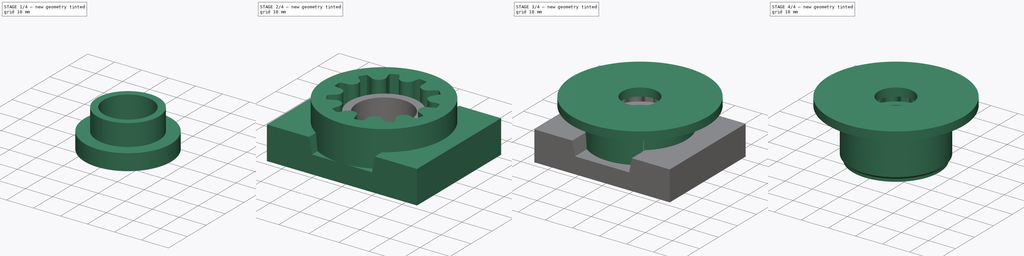
[diagram: build sequence overview — one tinted view per stage of 4, left to right]
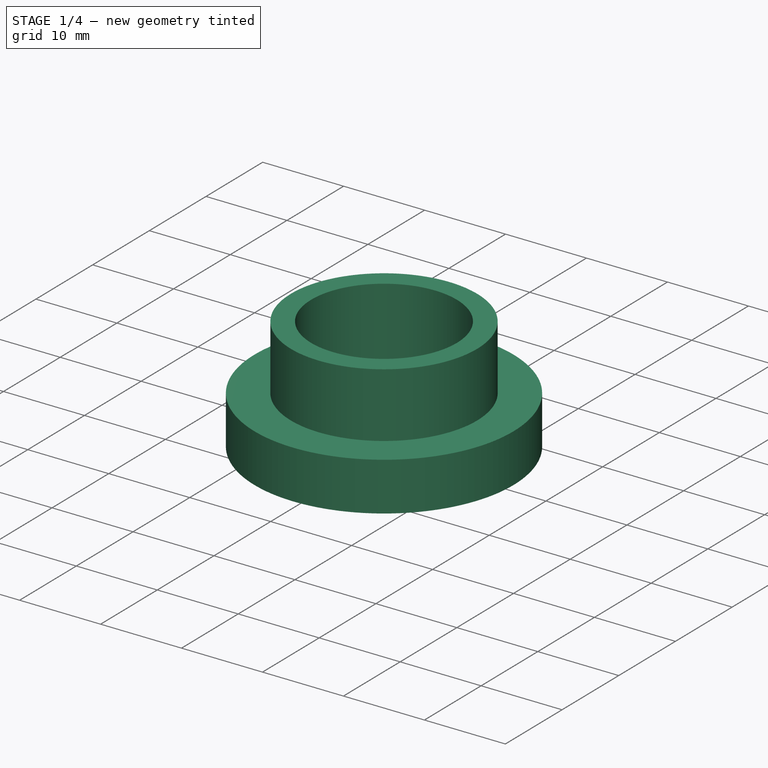
[diagram: stage 1 of 4 — iso view after this stage's code; geometry added in this stage tinted green]
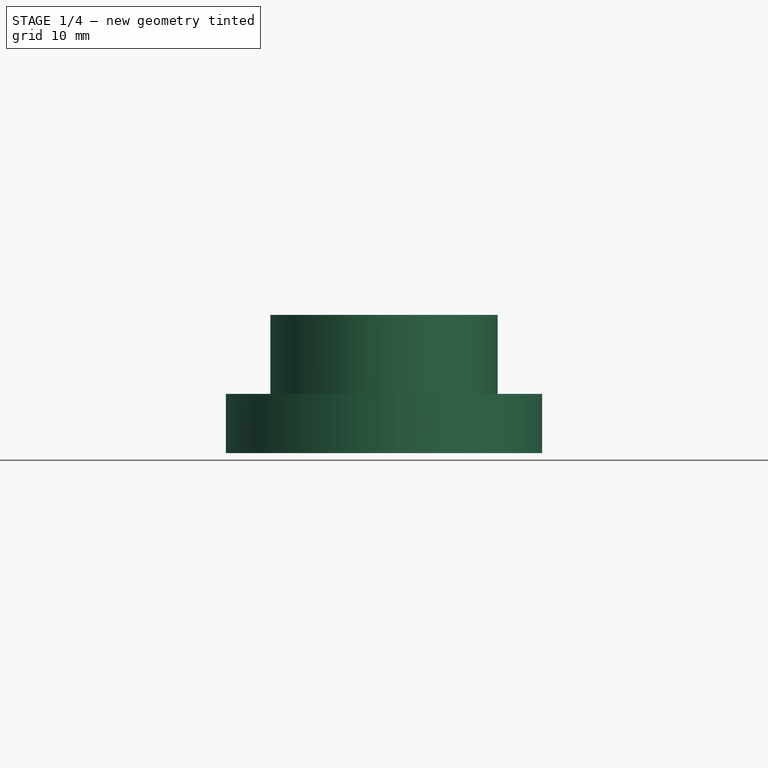
[diagram: stage 1 of 4 — front view after this stage's code; geometry added in this stage tinted green]
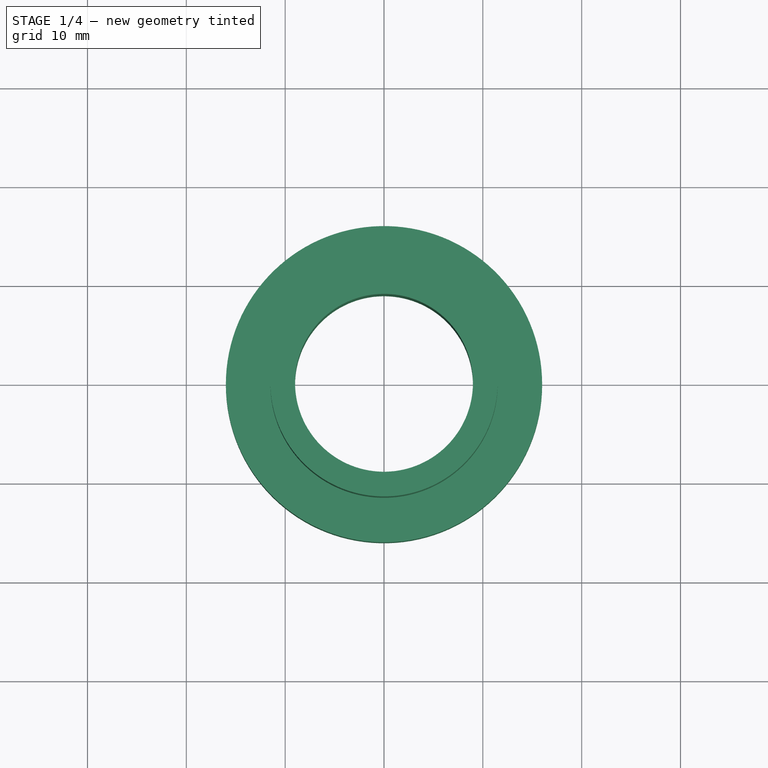
[diagram: stage 1 of 4 — top view after this stage's code; geometry added in this stage tinted green]
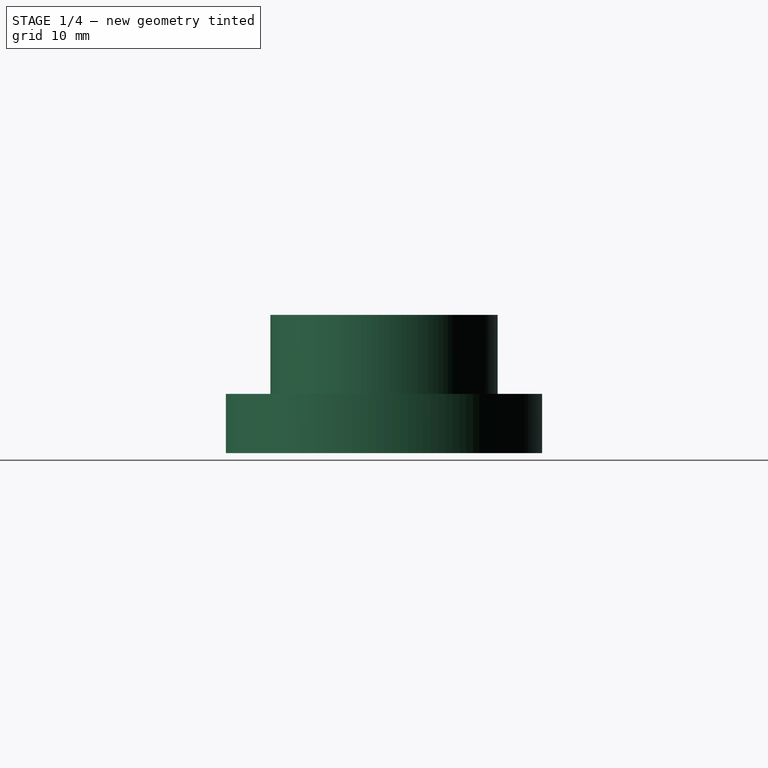
[diagram: stage 1 of 4 — right view after this stage's code; geometry added in this stage tinted green]
FCSTD DOCUMENT  (FreeCAD 0.20R29410 (Git))
Label: freewheel_motor_axis_adapter
License: All rights reserved
LicenseURL: http://en.wikipedia.org/wiki/All_rights_reserved
objects: Part::Feature×33, Sketcher::SketchObject×9, PartDesign::Pad×8, PartDesign::Body×3, PartDesign::Pocket×1, PartDesign::Chamfer×1, Part::Cut×1, Part::MultiCommon×1, Part::MultiFuse×1
note: 68 computed .brp shape members not serialized (recipe doc carries the construction recipe); baked Part::Feature solids carry a one-line shape summary decoded from their .brp

FEATURE [Sketcher::SketchObject] Sketch006
  FullyConstrained = true
  MapMode = 5
  Support = -> [XY_Plane002]
  sketch-geometry (2):
    g0: Circle CenterX=0 CenterY=0 CenterZ=0 NormalX=0 NormalY=0 NormalZ=1 AngleXU=0 Radius=9
    g1: Circle CenterX=0 CenterY=0 CenterZ=0 NormalX=0 NormalY=0 NormalZ=1 AngleXU=0 Radius=16
  constraints (4):
    c: Coincident(g-1,g1)
    c: Coincident(g0,g1)
    c: Radius(g0) = 9
    c: Radius(g1) = 16
FEATURE [PartDesign::Pad] Pad005
  Direction = (0,0,1)
  Length = 3
  Length2 = 10
  Profile = -> Sketch006
  ReferenceAxis = -> Sketch006 [N_Axis]
  Reversed = true
  Type = 0
FEATURE [Sketcher::SketchObject] Sketch007
  FullyConstrained = true
  MapMode = 5
  Support = -> [Pad005]
  sketch-geometry (2):
    g0: Circle CenterX=0 CenterY=0 CenterZ=0 NormalX=0 NormalY=0 NormalZ=1 AngleXU=0 Radius=9
    g1: Circle CenterX=0 CenterY=0 CenterZ=0 NormalX=0 NormalY=0 NormalZ=1 AngleXU=0 Radius=11.5
  constraints (4):
    c: Coincident(g0,g-1)
    c: Coincident(g1,g0)
    c: Radius(g1) = 11.5
    c: Radius(g0) = 9
FEATURE [PartDesign::Pad] Pad006
  BaseFeature = -> Pad005
  Direction = (0,0,1)
  Length = 11
  Length2 = 10
  Profile = -> Sketch007
  ReferenceAxis = -> Sketch007 [N_Axis]
  Type = 0
FEATURE [Sketcher::SketchObject] Sketch008
  FullyConstrained = true
  MapMode = 5
  Support = -> [Pad006]
  sketch-geometry (2):
    g0: Circle CenterX=0 CenterY=0 CenterZ=0 NormalX=0 NormalY=0 NormalZ=1 AngleXU=0 Radius=9
    g1: Circle CenterX=0 CenterY=0 CenterZ=0 NormalX=0 NormalY=0 NormalZ=1 AngleXU=0 Radius=16
  constraints (4):
    c: Coincident(g1,g-1)
    c: Coincident(g0,g1)
    c: Radius(g0) = 9
    c: Radius(g1) = 16
FEATURE [PartDesign::Pad] Pad007
  BaseFeature = -> Pad006
  Direction = (0,0,1)
  Length = 3
  Length2 = 10
  Profile = -> Sketch008
  ReferenceAxis = -> Sketch008 [N_Axis]
  Type = 0
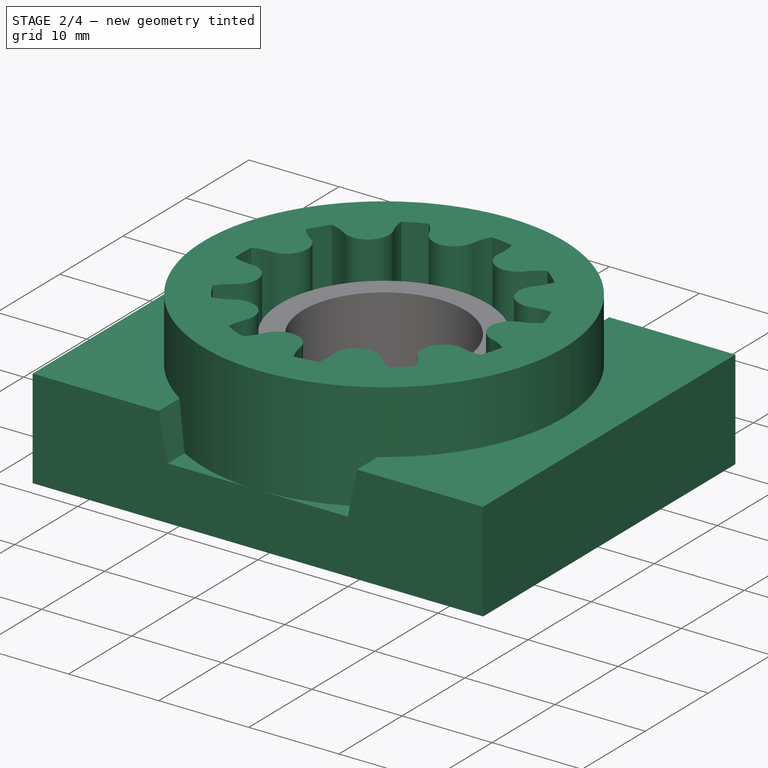
[diagram: stage 2 of 4 — iso view after this stage's code; geometry added in this stage tinted green]
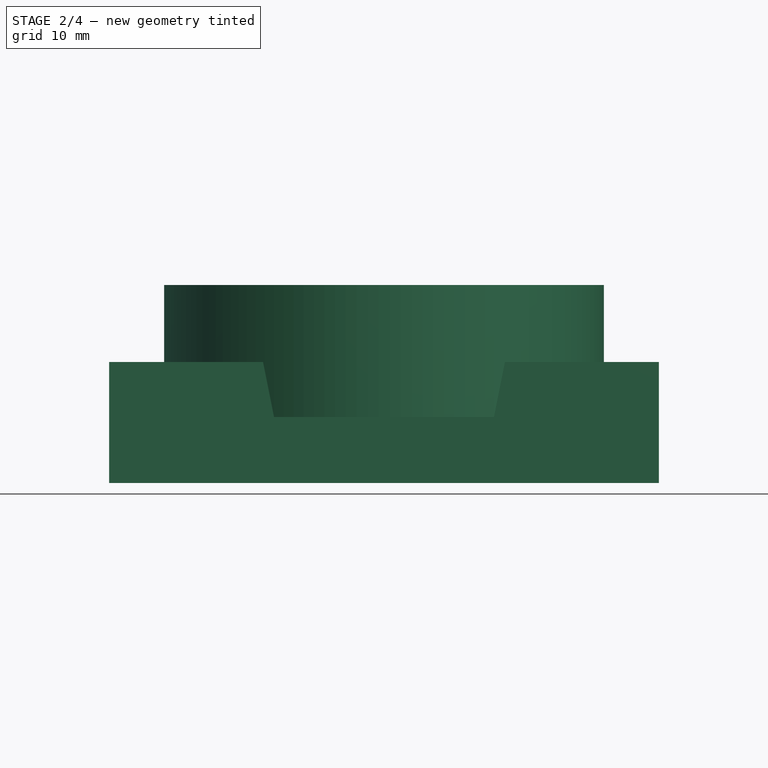
[diagram: stage 2 of 4 — front view after this stage's code; geometry added in this stage tinted green]
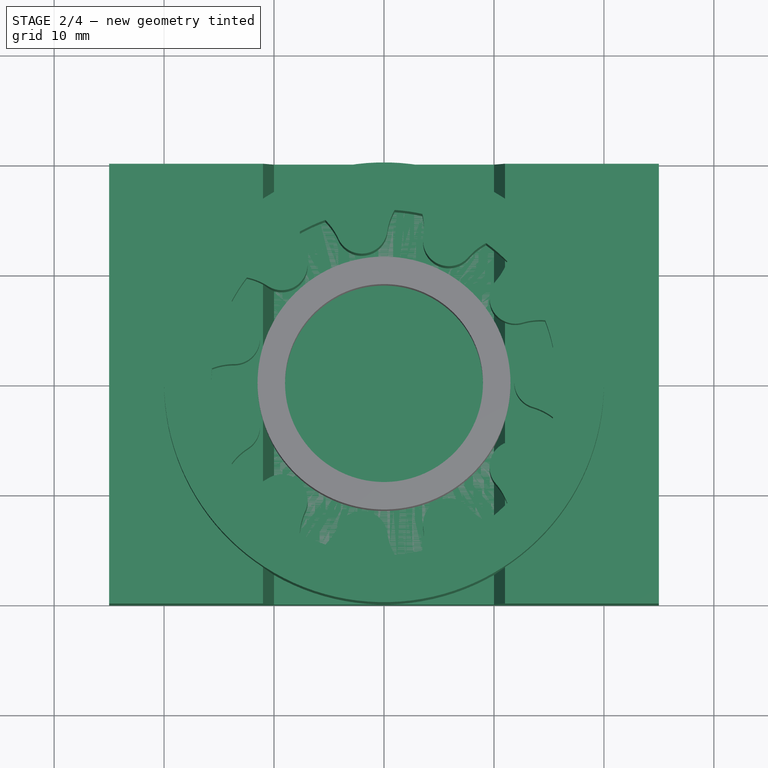
[diagram: stage 2 of 4 — top view after this stage's code; geometry added in this stage tinted green]
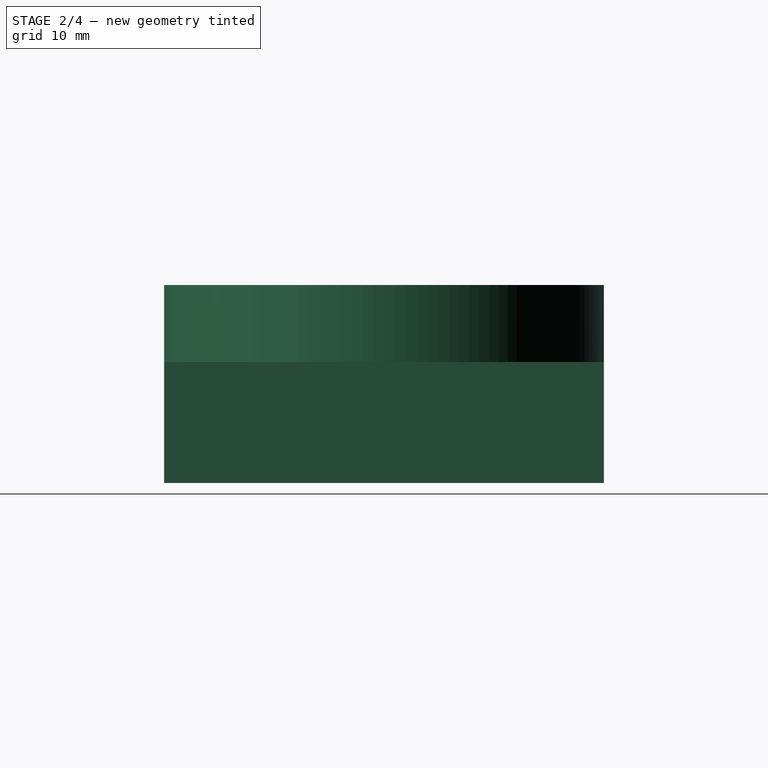
[diagram: stage 2 of 4 — right view after this stage's code; geometry added in this stage tinted green]
FEATURE [Part::Feature] Shape
  shape: bbox 1.38 x 4.096 x 2e-07 mm, 0 faces, 0 solids (baked)
FEATURE [Part::Feature] Shape001
  shape: bbox 3.86 x 1.935 x 2e-07 mm, 0 faces, 0 solids (baked)
FEATURE [Part::Feature] Shape002
  shape: bbox 4.126 x 2.684 x 2e-07 mm, 0 faces, 0 solids (baked)
FEATURE [Part::Feature] Shape003
  shape: bbox 1.123 x 4.184 x 2e-07 mm, 0 faces, 0 solids (baked)
FEATURE [Part::Feature] Shape004
  shape: bbox 2.201 x 3.715 x 2e-07 mm, 0 faces, 0 solids (baked)
FEATURE [Part::Feature] Shape005
  shape: bbox 4.464 x 2.016 x 2e-07 mm, 0 faces, 0 solids (baked)
FEATURE [Part::Feature] Shape006
  shape: bbox 3.159 x 2.944 x 2e-07 mm, 0 faces, 0 solids (baked)
FEATURE [Part::Feature] Shape007
  shape: bbox 0.5106 x 4.315 x 2e-07 mm, 0 faces, 0 solids (baked)
FEATURE [Part::Feature] Shape008
  shape: bbox 3.621 x 3.326 x 2e-07 mm, 0 faces, 0 solids (baked)
FEATURE [Part::Feature] Shape009
  shape: bbox 4.249 x 0.8969 x 2e-07 mm, 0 faces, 0 solids (baked)
FEATURE [Part::Feature] Shape010
  shape: bbox 2.465 x 3.545 x 2e-07 mm, 0 faces, 0 solids (baked)
FEATURE [Part::Feature] Shape011
  shape: bbox 2.35 x 4.327 x 2e-07 mm, 0 faces, 0 solids (baked)
FEATURE [Part::Feature] Shape012
  shape: bbox 3.99 x 1.65 x 2e-07 mm, 0 faces, 0 solids (baked)
FEATURE [Part::Feature] Shape013
  shape: bbox 3.99 x 1.65 x 2e-07 mm, 0 faces, 0 solids (baked)
FEATURE [Part::Feature] Shape014
  shape: bbox 2.35 x 4.327 x 2e-07 mm, 0 faces, 0 solids (baked)
FEATURE [Part::Feature] Shape015
  shape: bbox 2.465 x 3.545 x 2e-07 mm, 0 faces, 0 solids (baked)
FEATURE [Part::Feature] Shape016
  shape: bbox 4.249 x 0.8969 x 2e-07 mm, 0 faces, 0 solids (baked)
FEATURE [Part::Feature] Shape017
  shape: bbox 3.621 x 3.326 x 2e-07 mm, 0 faces, 0 solids (baked)
FEATURE [Part::Feature] Shape018
  shape: bbox 0.5106 x 4.315 x 2e-07 mm, 0 faces, 0 solids (baked)
FEATURE [Part::Feature] Shape019
  shape: bbox 3.159 x 2.944 x 2e-07 mm, 0 faces, 0 solids (baked)
FEATURE [Part::Feature] Shape020
  shape: bbox 4.464 x 2.016 x 2e-07 mm, 0 faces, 0 solids (baked)
FEATURE [Part::Feature] Shape021
  shape: bbox 2.201 x 3.715 x 2e-07 mm, 0 faces, 0 solids (baked)
FEATURE [Part::Feature] Shape022
  shape: bbox 1.123 x 4.184 x 2e-07 mm, 0 faces, 0 solids (baked)
FEATURE [Part::Feature] Shape023
  shape: bbox 4.126 x 2.684 x 2e-07 mm, 0 faces, 0 solids (baked)
FEATURE [Part::Feature] Shape024
  shape: bbox 3.86 x 1.935 x 2e-07 mm, 0 faces, 0 solids (baked)
FEATURE [Part::Feature] Shape025
  shape: bbox 1.38 x 4.096 x 2e-07 mm, 0 faces, 0 solids (baked)
FEATURE [Part::Feature] Shape026
  shape: bbox 3.012 x 3.889 x 2e-07 mm, 0 faces, 0 solids (baked)
FEATURE [Part::Feature] Shape027
  shape: bbox 4.294 x 0.6879 x 2e-07 mm, 0 faces, 0 solids (baked)
FEATURE [Part::Feature] Shape028
  shape: bbox 3.364 x 2.707 x 2e-07 mm, 0 faces, 0 solids (baked)
FEATURE [Part::Feature] Shape029
  shape: bbox 1.688 x 4.51 x 2e-07 mm, 0 faces, 0 solids (baked)
FEATURE [Part::Feature] Shape030
  shape: bbox 3.364 x 2.707 x 2e-07 mm, 0 faces, 0 solids (baked)
FEATURE [Part::Feature] Shape031
  shape: bbox 4.294 x 0.6879 x 2e-07 mm, 0 faces, 0 solids (baked)
FEATURE [Part::Feature] Shape032
  shape: bbox 3.012 x 3.889 x 2e-07 mm, 0 faces, 0 solids (baked)
FEATURE [Sketcher::SketchObject] Sketch
  FullyConstrained = false
  MapMode = 5
  Support = -> [XY_Plane]
  sketch-geometry (34):
    g0: ArcOfCircle CenterX=5.898 CenterY=12.9148 CenterZ=0 NormalX=0 NormalY=0 NormalZ=1 AngleXU=0 Radius=5.65 StartAngle=5.56918 EndAngle=6.35337
    g1: ArcOfCircle CenterX=11.944 CenterY=7.6759 CenterZ=0 NormalX=0 NormalY=0 NormalZ=1 AngleXU=0 Radius=5.65 StartAngle=1.64341 EndAngle=2.42759
    g2: ArcOfCircle CenterX=5.898 CenterY=12.9148 CenterZ=0 NormalX=0 NormalY=0 NormalZ=1 AngleXU=0 Radius=2.35001 StartAngle=2.99881 EndAngle=5.56919
    g3: ArcOfCircle CenterX=-2.0206 CenterY=14.0533 CenterZ=0 NormalX=0 NormalY=0 NormalZ=1 AngleXU=0 Radius=5.65001 StartAngle=6.14038 EndAngle=6.92457
    g4: ArcOfCircle CenterX=5.898 CenterY=12.9148 CenterZ=0 NormalX=0 NormalY=0 NormalZ=1 AngleXU=0 Radius=5.65 StartAngle=2.21461 EndAngle=2.99879
    g5: ArcOfCircle CenterX=-2.02059 CenterY=14.0533 CenterZ=0 NormalX=0 NormalY=0 NormalZ=1 AngleXU=0 Radius=2.35001 StartAngle=3.56999 EndAngle=6.1404
    g6: ArcOfCircle CenterX=-9.2976 CenterY=10.73 CenterZ=0 NormalX=0 NormalY=0 NormalZ=1 AngleXU=0 Radius=5.64994 StartAngle=0.428401 EndAngle=1.21258
    g7: ArcOfCircle CenterX=-2.0206 CenterY=14.0533 CenterZ=0 NormalX=0 NormalY=0 NormalZ=1 AngleXU=0 Radius=5.64994 StartAngle=2.78581 EndAngle=3.56999
    g8: ArcOfCircle CenterX=-9.2976 CenterY=10.73 CenterZ=0 NormalX=0 NormalY=0 NormalZ=1 AngleXU=0 Radius=2.35 StartAngle=4.14118 EndAngle=6.71158
    g9: ArcOfCircle CenterX=-13.6227 CenterY=4 CenterZ=0 NormalX=0 NormalY=0 NormalZ=1 AngleXU=0 Radius=5.64996 StartAngle=0.999602 EndAngle=1.78378
    g10: ArcOfCircle CenterX=-9.2976 CenterY=10.73 CenterZ=0 NormalX=0 NormalY=0 NormalZ=1 AngleXU=0 Radius=5.64997 StartAngle=3.35701 EndAngle=4.14119
    g11: ArcOfCircle CenterX=-13.6227 CenterY=3.99999 CenterZ=0 NormalX=0 NormalY=0 NormalZ=1 AngleXU=0 Radius=2.34999 StartAngle=4.71239 EndAngle=7.28278
    g12: ArcOfCircle CenterX=-13.6227 CenterY=-4 CenterZ=0 NormalX=0 NormalY=0 NormalZ=1 AngleXU=0 Radius=5.65 StartAngle=1.5708 EndAngle=2.35498
    g13: ArcOfCircle CenterX=-13.6227 CenterY=4 CenterZ=0 NormalX=0 NormalY=0 NormalZ=1 AngleXU=0 Radius=5.65 StartAngle=3.9282 EndAngle=4.71239
    g14: ArcOfCircle CenterX=-13.6227 CenterY=-3.99999 CenterZ=0 NormalX=0 NormalY=0 NormalZ=1 AngleXU=0 Radius=2.34999 StartAngle=5.28359 EndAngle=7.85398
    g15: ArcOfCircle CenterX=-9.2976 CenterY=-10.73 CenterZ=0 NormalX=0 NormalY=0 NormalZ=1 AngleXU=0 Radius=5.64997 StartAngle=2.14199 EndAngle=2.92618
    g16: ArcOfCircle CenterX=-13.6227 CenterY=-4 CenterZ=0 NormalX=0 NormalY=0 NormalZ=1 AngleXU=0 Radius=5.64996 StartAngle=4.4994 EndAngle=5.28358
    g17: ArcOfCircle CenterX=-9.29761 CenterY=-10.73 CenterZ=0 NormalX=0 NormalY=0 NormalZ=1 AngleXU=0 Radius=2.35 StartAngle=5.8548 EndAngle=8.42519
    g18: ArcOfCircle CenterX=-2.0206 CenterY=-14.0533 CenterZ=0 NormalX=0 NormalY=0 NormalZ=1 AngleXU=0 Radius=5.64995 StartAngle=2.71319 EndAngle=3.49737
    g19: ArcOfCircle CenterX=-9.2976 CenterY=-10.73 CenterZ=0 NormalX=0 NormalY=0 NormalZ=1 AngleXU=0 Radius=5.64994 StartAngle=5.0706 EndAngle=5.85478
    g20: ArcOfCircle CenterX=-2.02057 CenterY=-14.0533 CenterZ=0 NormalX=0 NormalY=0 NormalZ=1 AngleXU=0 Radius=2.35003 StartAngle=0.142781 EndAngle=2.7132
    g21: ArcOfCircle CenterX=5.898 CenterY=-12.9148 CenterZ=0 NormalX=0 NormalY=0 NormalZ=1 AngleXU=0 Radius=5.64996 StartAngle=3.2844 EndAngle=4.06857
    g22: ArcOfCircle CenterX=-2.0206 CenterY=-14.0533 CenterZ=0 NormalX=0 NormalY=0 NormalZ=1 AngleXU=0 Radius=5.65 StartAngle=5.64181 EndAngle=6.42599
    g23: ArcOfCircle CenterX=5.89799 CenterY=-12.9148 CenterZ=0 NormalX=0 NormalY=0 NormalZ=1 AngleXU=0 Radius=2.35002 StartAngle=0.713992 EndAngle=3.28438
    g24: ArcOfCircle CenterX=11.944 CenterY=-7.6759 CenterZ=0 NormalX=0 NormalY=0 NormalZ=1 AngleXU=0 Radius=5.65 StartAngle=3.85559 EndAngle=4.63978
    g25: ArcOfCircle CenterX=5.898 CenterY=-12.9148 CenterZ=0 NormalX=0 NormalY=0 NormalZ=1 AngleXU=0 Radius=5.65001 StartAngle=6.213 EndAngle=6.99719
    g26: ArcOfCircle CenterX=11.944 CenterY=-7.67597 CenterZ=0 NormalX=0 NormalY=0 NormalZ=1 AngleXU=0 Radius=2.34995 StartAngle=1.28522 EndAngle=3.85556
    g27: ArcOfCircle CenterX=14.1978 CenterY=1e-16 CenterZ=0 NormalX=0 NormalY=0 NormalZ=1 AngleXU=0 Radius=5.65006 StartAngle=4.42679 EndAngle=5.21099
    g28: ArcOfCircle CenterX=11.944 CenterY=-7.6759 CenterZ=0 NormalX=0 NormalY=0 NormalZ=1 AngleXU=0 Radius=5.65 StartAngle=0.501001 EndAngle=1.28519
    g29: ArcOfCircle CenterX=14.1978 CenterY=-8.84493e-06 CenterZ=0 NormalX=0 NormalY=0 NormalZ=1 AngleXU=0 Radius=2.34993 StartAngle=1.85637 EndAngle=4.42682
    g30: ArcOfCircle CenterX=11.944 CenterY=7.6759 CenterZ=0 NormalX=0 NormalY=0 NormalZ=1 AngleXU=0 Radius=5.65002 StartAngle=4.99799 EndAngle=5.78218
    g31: ArcOfCircle CenterX=14.1978 CenterY=-3e-16 CenterZ=0 NormalX=0 NormalY=0 NormalZ=1 AngleXU=0 Radius=5.65003 StartAngle=1.0722 EndAngle=1.85639
    g32: ArcOfCircle CenterX=11.944 CenterY=7.67596 CenterZ=0 NormalX=0 NormalY=0 NormalZ=1 AngleXU=0 Radius=2.34997 StartAngle=2.42762 EndAngle=4.99798
    g33: Circle CenterX=0 CenterY=0 CenterZ=0 NormalX=0 NormalY=0 NormalZ=1 AngleXU=0 Radius=20
  constraints (33):
    c: Radius(g33) = 20
    c: Coincident(g9,g8)
    c: Coincident(g10,g9)
    c: Coincident(g11,g10)
    c: Coincident(g12,g13)
    c: Coincident(g15,g14)
    c: Coincident(g15,g16)
    c: Coincident(g17,g16)
    c: Coincident(g18,g17)
    c: Coincident(g18,g19)
    c: Coincident(g19,g20)
    c: Coincident(g20,g21)
    c: Coincident(g22,g21)
    c: Coincident(g22,g23)
    c: Coincident(g24,g23)
    c: Coincident(g25,g24)
    c: Coincident(g26,g25)
    c: Coincident(g26,g27)
    c: Coincident(g27,g28)
    c: Coincident(g29,g28)
    c: Coincident(g29,g30)
    c: Coincident(g31,g30)
    c: Coincident(g31,g32)
    c: Coincident(g0,g32)
    c: Coincident(g1,g0)
    c: Coincident(g2,g1)
    c: Coincident(g3,g2)
    c: Coincident(g4,g3)
    c: Coincident(g5,g4)
    c: Coincident(g6,g5)
    c: Coincident(g7,g6)
    c: Coincident(g7,g8)
    c: Coincident(g11,g12)
FEATURE [PartDesign::Pad] Pad
  Direction = (0,0,1)
  Length = 15
  Length2 = 100
  Profile = -> Sketch
  ReferenceAxis = -> Sketch [N_Axis]
  Type = 0
FEATURE [Sketcher::SketchObject] Sketch001
  FullyConstrained = true
  MapMode = 5
  Placement = pos=(0,0,15) rot=(0,0,1;0rad)
  Support = -> [Pad]
  sketch-geometry (2):
    g0: Circle CenterX=0 CenterY=0 CenterZ=0 NormalX=0 NormalY=0 NormalZ=1 AngleXU=0 Radius=15.7
    g1: Circle CenterX=0 CenterY=0 CenterZ=0 NormalX=0 NormalY=0 NormalZ=1 AngleXU=0 Radius=20
  constraints (4):
    c: Coincident(g0,g-1)
    c: Radius(g0) = 15.7
    c: Coincident(g1,g0)
    c: Radius(g1) = 20
FEATURE [PartDesign::Pad] Pad001
  BaseFeature = -> Pad
  Direction = (0,0,1)
  Length = 15
  Length2 = 100
  Profile = -> Sketch001
  ReferenceAxis = -> Sketch001 [N_Axis]
  Reversed = true
  Type = 0
FEATURE [PartDesign::Body] Body
  Group = -> [Sketch,Pad,Sketch001,Pad001,Sketch002,Pocket,Sketch003,Pad002,Sketch004,Pad003,Chamfer]
  Origin = -> Origin
  Tip = -> Chamfer
FEATURE [Sketcher::SketchObject] Sketch005
  FullyConstrained = true
  MapMode = 5
  Placement = pos=(0,0,0) rot=(1,0,0;1.5708rad)
  Support = -> [XZ_Plane001]
  sketch-geometry (8):
    g0: LineSegment StartX=-25 StartY=8 StartZ=0 EndX=-25 EndY=-3 EndZ=0
    g1: LineSegment StartX=-25 StartY=-3 StartZ=0 EndX=25 EndY=-3 EndZ=0
    g2: LineSegment StartX=25 StartY=-3 StartZ=0 EndX=25 EndY=8 EndZ=0
    g3: LineSegment StartX=25 StartY=8 StartZ=0 EndX=11 EndY=8 EndZ=0
    g4: LineSegment StartX=11 StartY=8 StartZ=0 EndX=10 EndY=3 EndZ=0
    g5: LineSegment StartX=10 StartY=3 StartZ=0 EndX=-10 EndY=3 EndZ=0
    g6: LineSegment StartX=-10 StartY=3 StartZ=0 EndX=-11 EndY=8 EndZ=0
    g7: LineSegment StartX=-11 StartY=8 StartZ=0 EndX=-25 EndY=8 EndZ=0
  constraints (24):
    c: Horizontal(g1)
    c: Horizontal(g5)
    c: Horizontal(g7)
    c: Horizontal(g3)
    c: Vertical(g2)
    c: Vertical(g0)
    c: Coincident(g7,g0)
    c: Coincident(g0,g1)
    c: Coincident(g5,g6)
    c: Coincident(g5,g4)
    c: Coincident(g1,g2)
    c: Coincident(g2,g3)
    c: Coincident(g4,g3)
    c: Coincident(g6,g7)
    c: DistanceY(g1,g-1) = 3
    c: DistanceY(g-1,g0) = 8
    c: DistanceY(g-1,g2) = 8
    c: DistanceX(g0,g-1) = 25
    c: DistanceX(g1,g1) = 50
    c: DistanceX(g7,g7) = 14
    c: DistanceX(g3,g3) = 14
    c: DistanceX(g5,g5) = 20
    c: DistanceX(g5,g-1) = 10
    c: DistanceY(g5,g6) = 5
FEATURE [PartDesign::Pad] Pad004
  Direction = (0,-1,-2e-16)
  Length = 20
  Length2 = 20
  Placement = pos=(0,0,0) rot=(1,0,0;1.5708rad)
  Profile = -> Sketch005
  ReferenceAxis = -> Sketch005 [N_Axis]
  Type = 4
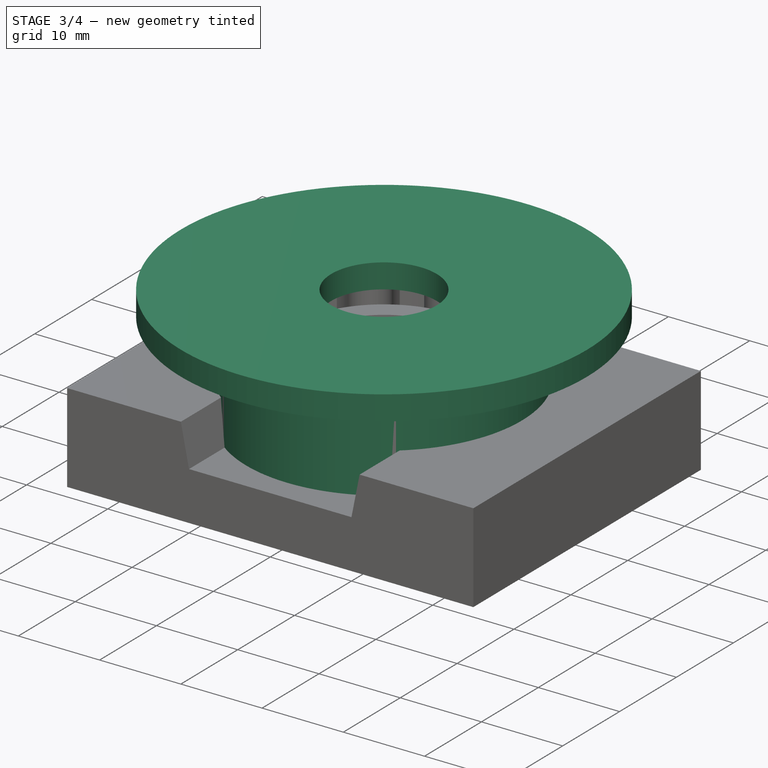
[diagram: stage 3 of 4 — iso view after this stage's code; geometry added in this stage tinted green]
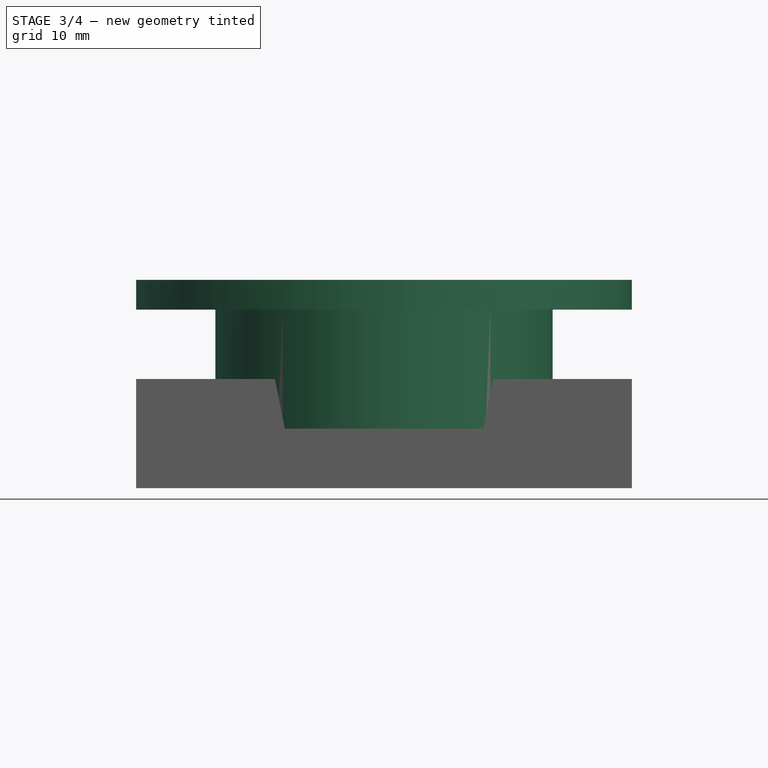
[diagram: stage 3 of 4 — front view after this stage's code; geometry added in this stage tinted green]
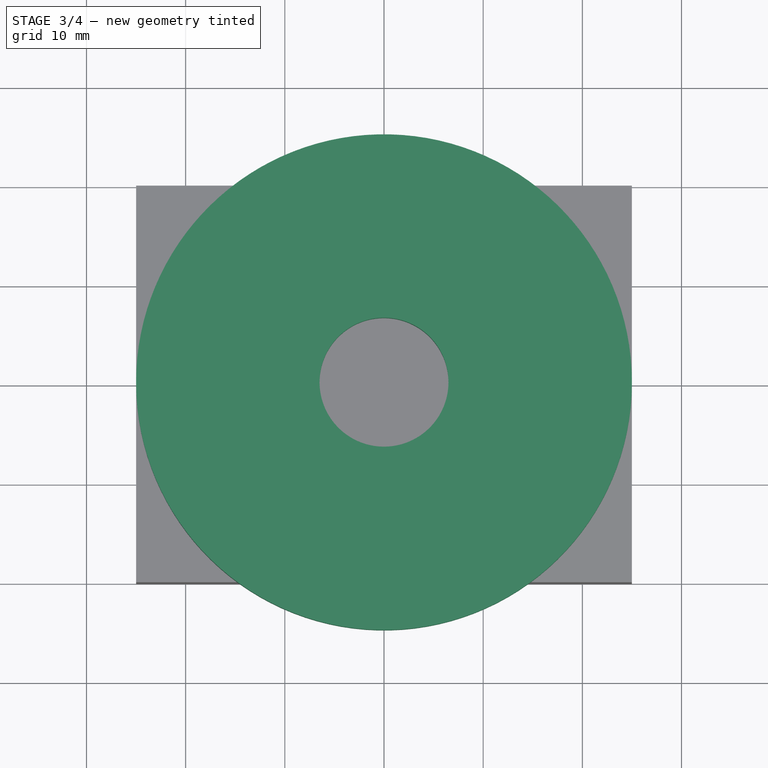
[diagram: stage 3 of 4 — top view after this stage's code; geometry added in this stage tinted green]
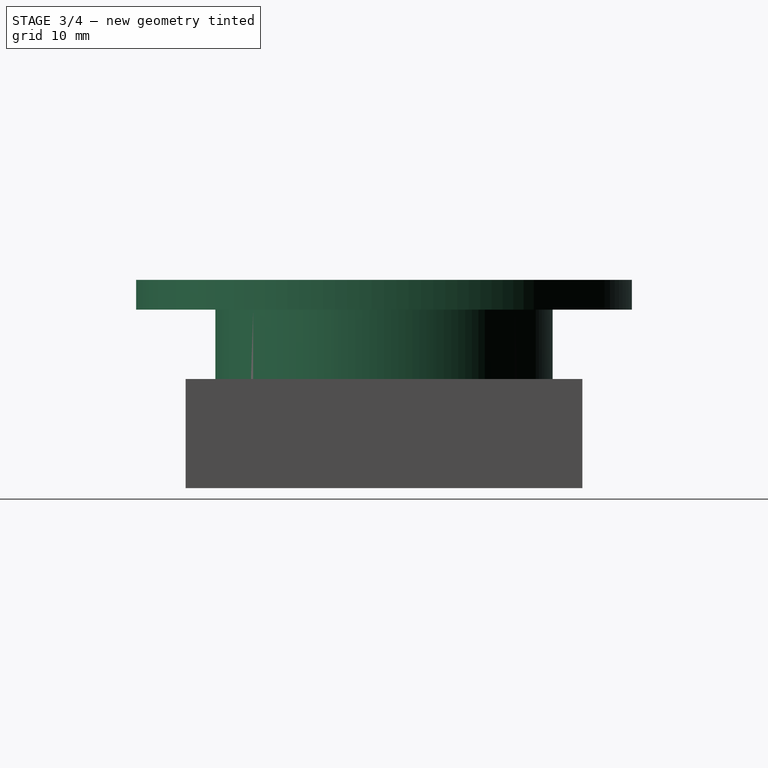
[diagram: stage 3 of 4 — right view after this stage's code; geometry added in this stage tinted green]
FEATURE [Sketcher::SketchObject] Sketch002
  FullyConstrained = true
  MapMode = 5
  Placement = pos=(0,0,15) rot=(0,0,1;0rad)
  Support = -> [Pad001]
  sketch-geometry (2):
    g0: Circle CenterX=0 CenterY=0 CenterZ=0 NormalX=0 NormalY=0 NormalZ=1 AngleXU=0 Radius=20
    g1: Circle CenterX=0 CenterY=0 CenterZ=0 NormalX=0 NormalY=0 NormalZ=1 AngleXU=0 Radius=17
  constraints (4):
    c: Coincident(g0,g-1)
    c: Radius(g0) = 20
    c: Coincident(g1,g0)
    c: Radius(g1) = 17
FEATURE [PartDesign::Pocket] Pocket
  BaseFeature = -> Pad001
  Direction = (0,0,-1)
  Length = 15
  Length2 = 100
  Profile = -> Sketch002
  ReferenceAxis = -> Sketch002 [N_Axis]
  Type = 0
FEATURE [Sketcher::SketchObject] Sketch003
  FullyConstrained = false
  MapMode = 5
  Placement = pos=(0,0,15) rot=(0,0,1;0rad)
  Support = -> [Pocket]
  sketch-geometry (2):
    g0: Circle CenterX=0 CenterY=5.456e-13 CenterZ=0 NormalX=0 NormalY=0 NormalZ=1 AngleXU=0 Radius=25
    g1: Circle CenterX=0 CenterY=5.456e-13 CenterZ=0 NormalX=0 NormalY=0 NormalZ=1 AngleXU=0 Radius=6.5
  constraints (3):
    c: Radius(g0) = 25
    c: Coincident(g0,g1)
    c: Diameter(g1) = 13
FEATURE [PartDesign::Pad] Pad002
  BaseFeature = -> Pocket
  Direction = (0,0,1)
  Length = 3
  Length2 = 100
  Profile = -> Sketch003
  ReferenceAxis = -> Sketch003 [N_Axis]
  Type = 0
FEATURE [Sketcher::SketchObject] Sketch004
  FullyConstrained = true
  MapMode = 5
  Placement = pos=(0,0,0) rot=(1,0,0;3.14159rad)
  Support = -> [Pad002]
  sketch-geometry (2):
    g0: Circle CenterX=0 CenterY=0 CenterZ=0 NormalX=0 NormalY=0 NormalZ=1 AngleXU=0 Radius=15.7
    g1: Circle CenterX=0 CenterY=0 CenterZ=0 NormalX=0 NormalY=0 NormalZ=1 AngleXU=0 Radius=17
  constraints (4):
    c: Coincident(g1,g-1)
    c: Coincident(g0,g1)
    c: Radius(g1) = 17
    c: Radius(g0) = 15.7
FEATURE [PartDesign::Pad] Pad003
  BaseFeature = -> Pad002
  Direction = (0,0,-1)
  Length = 2
  Length2 = 10
  Profile = -> Sketch004
  ReferenceAxis = -> Sketch004 [N_Axis]
  Type = 0
FEATURE [PartDesign::Chamfer] Chamfer
  Angle = 45
  Base = -> Pad003 [Edge55]
  BaseFeature = -> Pad003
  ChamferType = 0
  FlipDirection = false
  Size = 1
  Size2 = 1
  SupportTransform = false
  UseAllEdges = false
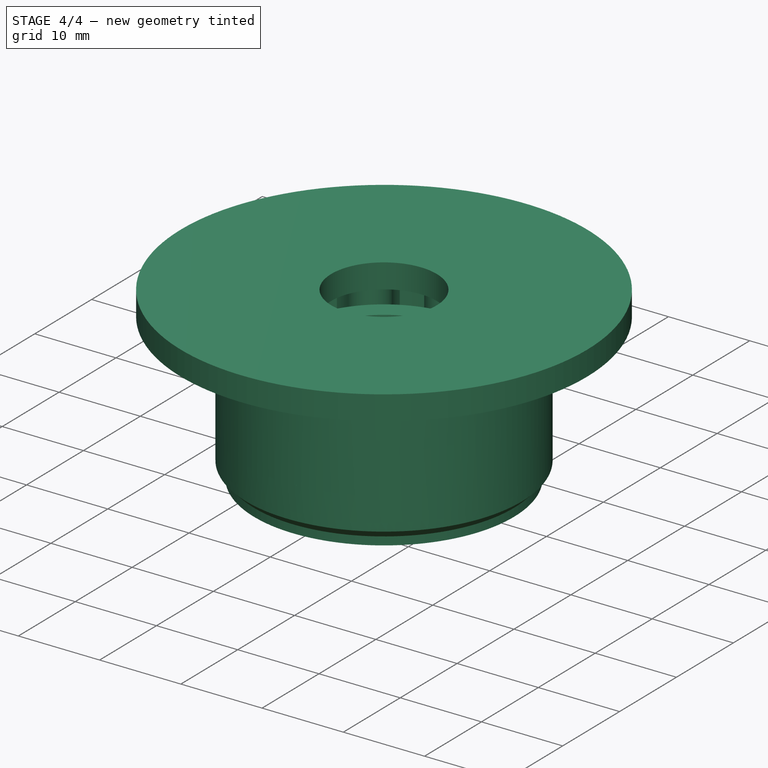
[diagram: stage 4 of 4 — iso view after this stage's code; geometry added in this stage tinted green]
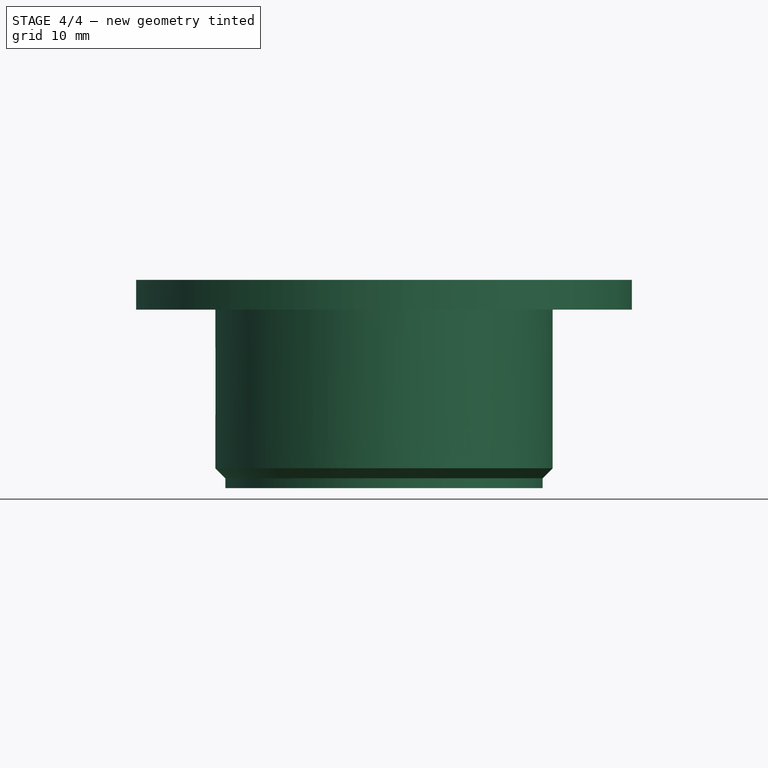
[diagram: stage 4 of 4 — front view after this stage's code; geometry added in this stage tinted green]
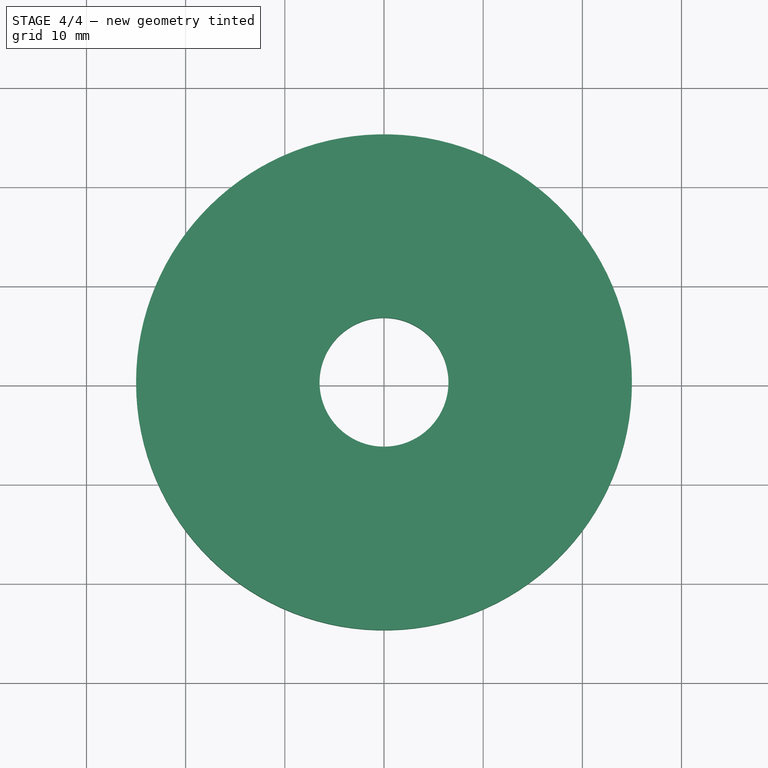
[diagram: stage 4 of 4 — top view after this stage's code; geometry added in this stage tinted green]
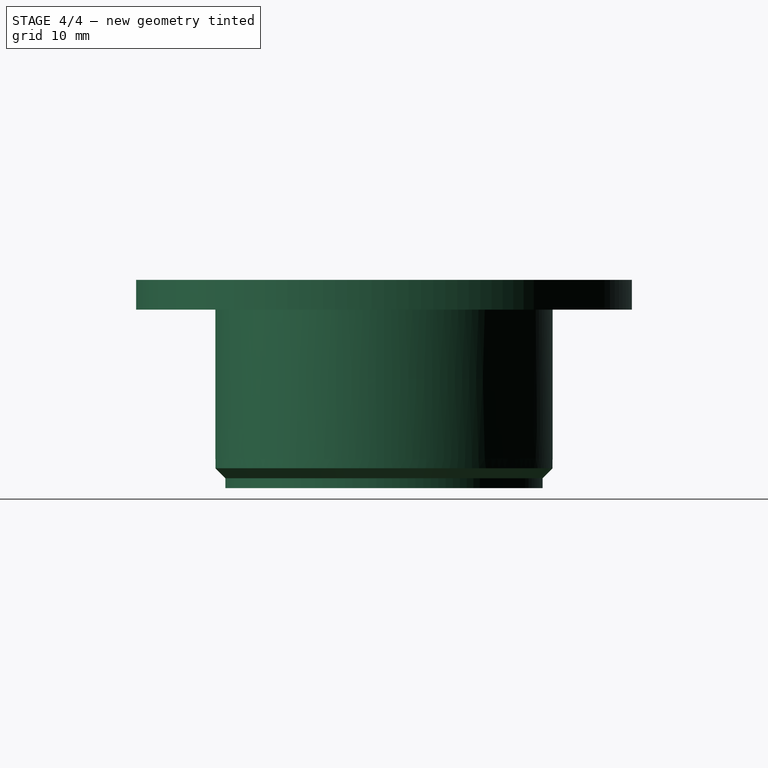
[diagram: stage 4 of 4 — right view after this stage's code; geometry added in this stage tinted green]
FEATURE [PartDesign::Body] Body001
  Group = -> [Sketch005,Pad004]
  Origin = -> Origin001
  Tip = -> Pad004
FEATURE [Part::Cut] Cut
  Base = -> Body
  Tool = -> Body001
FEATURE [Part::MultiCommon] Common
  Shapes = -> [Body,Body001]
FEATURE [PartDesign::Body] Body002
  Group = -> [Sketch006,Pad005,Sketch007,Pad006,Sketch008,Pad007]
  Origin = -> Origin002
  Tip = -> Pad007
FEATURE [Part::MultiFuse] Fusion
  Shapes = -> [Common,Body002]
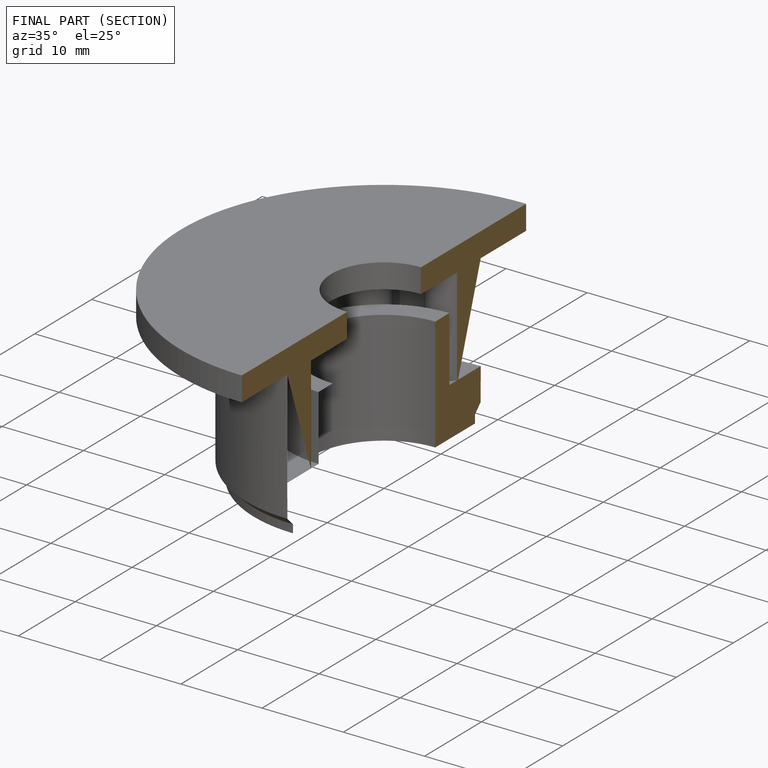
[diagram: finished part — half-section view (interior)]
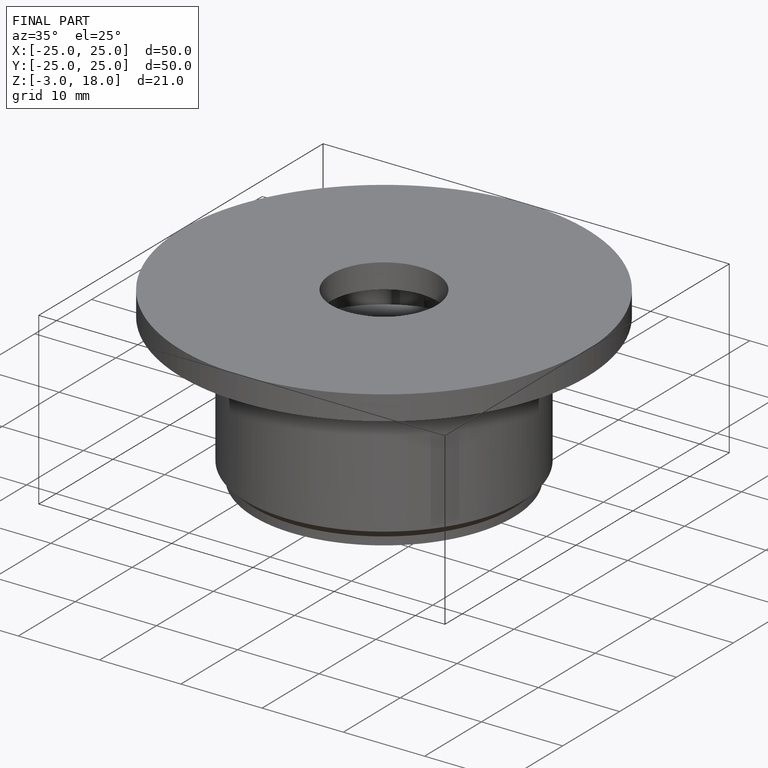
[diagram: finished part — iso view with bounding-box wireframe]
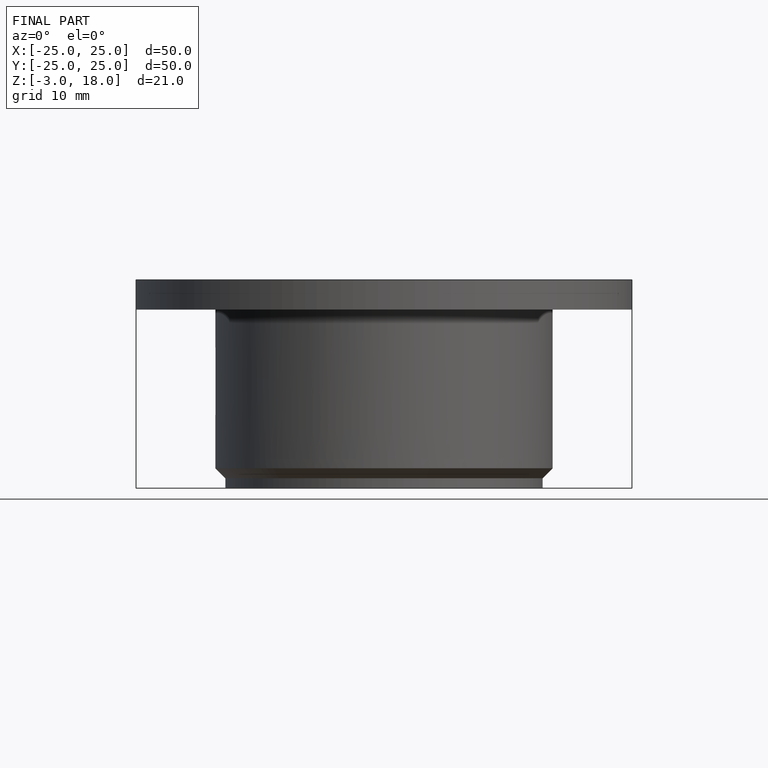
[diagram: finished part — front view with bounding-box wireframe]
